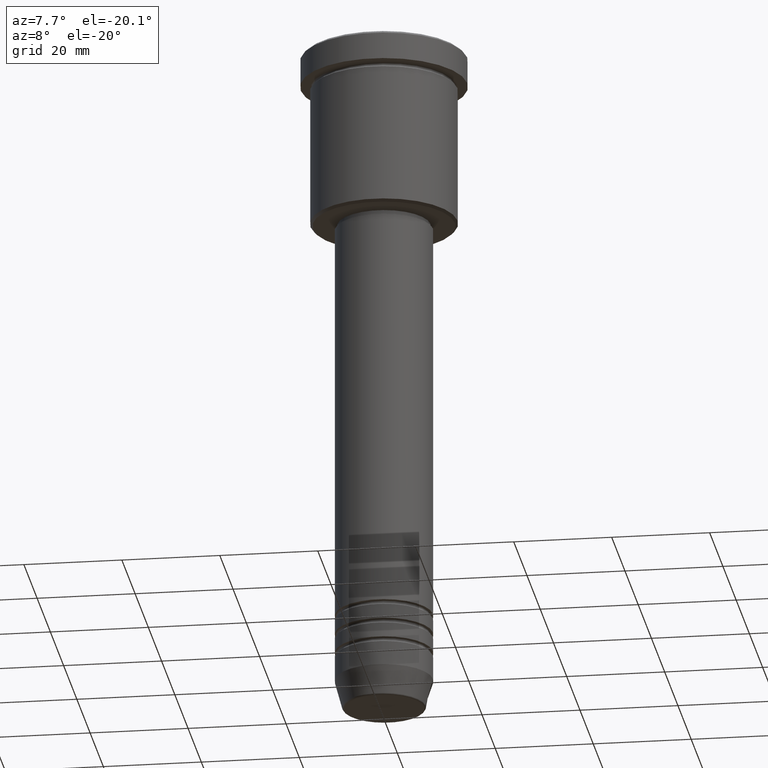
[diagram: clean part render]
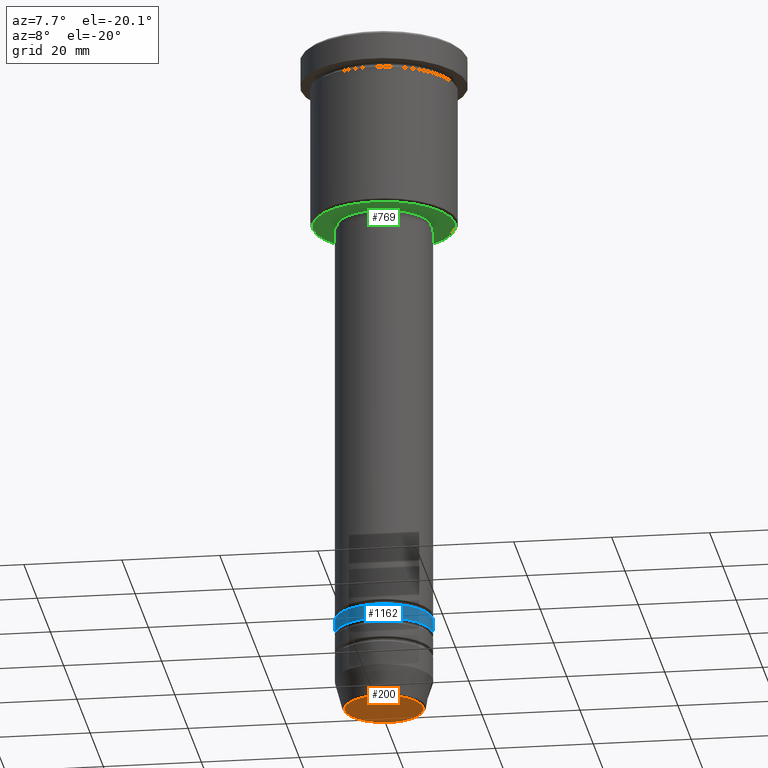
[diagram: same view with three faces highlighted in distinct colors, each labeled with its STEP entity id]
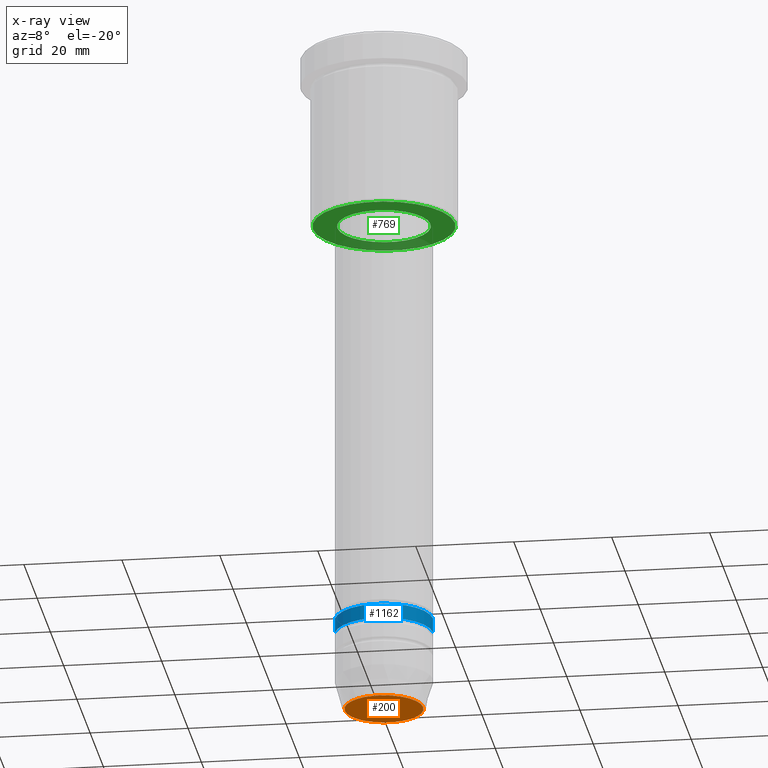
[diagram: x-ray of the same camera — body ghosted, the three highlighted faces saturated]
A machine part, auxiliary view with three faces highlighted in distinct colors.
The next image is the same camera in x-ray (body ghosted, the three faces saturated) — at least one of them is partly hidden behind the body in this view.
Their STEP definitions:

[orange] entity #200 — the highlighted planar face has unit normal (0, -0, 1).
#14 = DIRECTION ( 'NONE',  ( 0.000000000000000000, 0.000000000000000000, -1.000000000000000000 ) ) ;
#17 = DIRECTION ( 'NONE',  ( 0.000000000000000000, -0.000000000000000000, 1.000000000000000000 ) ) ;
#62 = CIRCLE ( 'NONE', #102, 8.008641351423783306 ) ;
#91 = FACE_OUTER_BOUND ( 'NONE', #639, .T. ) ;
#102 = AXIS2_PLACEMENT_3D ( 'NONE', #368, #730, #466 ) ;
#200 = ADVANCED_FACE ( 'NONE', ( #91 ), #322, .F. ) ;
#218 = ORIENTED_EDGE ( 'NONE', *, *, #254, .T. ) ;
#237 = DIRECTION ( 'NONE',  ( 1.000000000000000000, 0.000000000000000000, 0.000000000000000000 ) ) ;
#254 = EDGE_CURVE ( 'NONE', #815, #930, #62, .T. ) ;
#303 = CIRCLE ( 'NONE', #1062, 8.008641351423783306 ) ;
#322 = PLANE ( 'NONE',  #805 ) ;
#367 = EDGE_CURVE ( 'NONE', #930, #815, #303, .T. ) ;
#368 = CARTESIAN_POINT ( 'NONE',  ( 0.000000000000000000, 0.000000000000000000, -140.0000000000000000 ) ) ;
#384 = ORIENTED_EDGE ( 'NONE', *, *, #367, .T. ) ;
#391 = CARTESIAN_POINT ( 'NONE',  ( 8.008641351423783306, 0.000000000000000000, -140.0000000000000000 ) ) ;
#466 = DIRECTION ( 'NONE',  ( 1.000000000000000000, 0.000000000000000000, 0.000000000000000000 ) ) ;
#566 = CARTESIAN_POINT ( 'NONE',  ( -8.008641351423783306, 1.010348648938493566E-15, -140.0000000000000000 ) ) ;
#593 = CARTESIAN_POINT ( 'NONE',  ( 0.000000000000000000, 0.000000000000000000, -140.0000000000000000 ) ) ;
#639 = EDGE_LOOP ( 'NONE', ( #218, #384 ) ) ;
#663 = DIRECTION ( 'NONE',  ( 1.000000000000000000, 0.000000000000000000, 0.000000000000000000 ) ) ;
#730 = DIRECTION ( 'NONE',  ( 0.000000000000000000, 0.000000000000000000, -1.000000000000000000 ) ) ;
#805 = AXIS2_PLACEMENT_3D ( 'NONE', #593, #17, #663 ) ;
#815 = VERTEX_POINT ( 'NONE', #391 ) ;
#837 = CARTESIAN_POINT ( 'NONE',  ( 0.000000000000000000, 0.000000000000000000, -140.0000000000000000 ) ) ;
#930 = VERTEX_POINT ( 'NONE', #566 ) ;
#1062 = AXIS2_PLACEMENT_3D ( 'NONE', #837, #14, #237 ) ;

[blue] entity #1162 — the highlighted cylindrical surface (partial cylindrical patch) has radius 10 mm, axis along (-0, -0, 1).
#22 = EDGE_LOOP ( 'NONE', ( #607, #1127, #716, #979 ) ) ;
#128 = LINE ( 'NONE', #950, #888 ) ;
#168 = DIRECTION ( 'NONE',  ( -0.000000000000000000, -0.000000000000000000, 1.000000000000000000 ) ) ;
#196 = CARTESIAN_POINT ( 'NONE',  ( 0.000000000000000000, 0.000000000000000000, -121.0000000000000000 ) ) ;
#297 = CARTESIAN_POINT ( 'NONE',  ( 0.000000000000000000, 0.000000000000000000, -124.0000000000000000 ) ) ;
#340 = CARTESIAN_POINT ( 'NONE',  ( -10.00000000000000178, 1.224646799147353454E-15, -124.0000000000000000 ) ) ;
#352 = EDGE_CURVE ( 'NONE', #987, #469, #524, .T. ) ;
#364 = AXIS2_PLACEMENT_3D ( 'NONE', #396, #1116, #674 ) ;
#394 = VERTEX_POINT ( 'NONE', #879 ) ;
#396 = CARTESIAN_POINT ( 'NONE',  ( 0.000000000000000000, 0.000000000000000000, 0.000000000000000000 ) ) ;
#421 = AXIS2_PLACEMENT_3D ( 'NONE', #297, #460, #811 ) ;
#460 = DIRECTION ( 'NONE',  ( -0.000000000000000000, -0.000000000000000000, 1.000000000000000000 ) ) ;
#469 = VERTEX_POINT ( 'NONE', #878 ) ;
#489 = CARTESIAN_POINT ( 'NONE',  ( 10.00000000000000178, 0.000000000000000000, -124.0000000000000000 ) ) ;
#500 = CIRCLE ( 'NONE', #421, 10.00000000000000178 ) ;
#508 = DIRECTION ( 'NONE',  ( -0.000000000000000000, -0.000000000000000000, 1.000000000000000000 ) ) ;
#524 = LINE ( 'NONE', #655, #807 ) ;
#597 = EDGE_CURVE ( 'NONE', #987, #928, #500, .T. ) ;
#607 = ORIENTED_EDGE ( 'NONE', *, *, #352, .F. ) ;
#655 = CARTESIAN_POINT ( 'NONE',  ( -10.00000000000000178, 1.224646799147353454E-15, 0.000000000000000000 ) ) ;
#672 = FACE_OUTER_BOUND ( 'NONE', #22, .T. ) ;
#674 = DIRECTION ( 'NONE',  ( 1.000000000000000000, 0.000000000000000000, 0.000000000000000000 ) ) ;
#688 = DIRECTION ( 'NONE',  ( 1.000000000000000000, 0.000000000000000000, 0.000000000000000000 ) ) ;
#716 = ORIENTED_EDGE ( 'NONE', *, *, #883, .T. ) ;
#807 = VECTOR ( 'NONE', #957, 1000.000000000000000 ) ;
#811 = DIRECTION ( 'NONE',  ( 1.000000000000000000, 0.000000000000000000, 0.000000000000000000 ) ) ;
#878 = CARTESIAN_POINT ( 'NONE',  ( -10.00000000000000000, 1.224646799147353256E-15, -121.0000000000000000 ) ) ;
#879 = CARTESIAN_POINT ( 'NONE',  ( 10.00000000000000000, 0.000000000000000000, -121.0000000000000000 ) ) ;
#883 = EDGE_CURVE ( 'NONE', #928, #394, #128, .T. ) ;
#888 = VECTOR ( 'NONE', #508, 1000.000000000000000 ) ;
#909 = EDGE_CURVE ( 'NONE', #469, #394, #1172, .T. ) ;
#928 = VERTEX_POINT ( 'NONE', #489 ) ;
#950 = CARTESIAN_POINT ( 'NONE',  ( 10.00000000000000178, 0.000000000000000000, 0.000000000000000000 ) ) ;
#955 = AXIS2_PLACEMENT_3D ( 'NONE', #196, #168, #688 ) ;
#957 = DIRECTION ( 'NONE',  ( -0.000000000000000000, -0.000000000000000000, 1.000000000000000000 ) ) ;
#979 = ORIENTED_EDGE ( 'NONE', *, *, #909, .F. ) ;
#987 = VERTEX_POINT ( 'NONE', #340 ) ;
#1033 = CYLINDRICAL_SURFACE ( 'NONE', #364, 10.00000000000000178 ) ;
#1116 = DIRECTION ( 'NONE',  ( -0.000000000000000000, -0.000000000000000000, 1.000000000000000000 ) ) ;
#1127 = ORIENTED_EDGE ( 'NONE', *, *, #597, .T. ) ;
#1162 = ADVANCED_FACE ( 'NONE', ( #672 ), #1033, .T. ) ;
#1172 = CIRCLE ( 'NONE', #955, 10.00000000000000000 ) ;

[green] entity #769 — the highlighted planar face has unit normal (0, 0, -1).
#2 = VERTEX_POINT ( 'NONE', #1153 ) ;
#24 = CIRCLE ( 'NONE', #589, 14.49999999999995559 ) ;
#64 = DIRECTION ( 'NONE',  ( 1.000000000000000000, 0.000000000000000000, 0.000000000000000000 ) ) ;
#89 = CARTESIAN_POINT ( 'NONE',  ( 0.000000000000000000, 0.000000000000000000, -36.00000000000001421 ) ) ;
#173 = EDGE_LOOP ( 'NONE', ( #338, #789 ) ) ;
#184 = PLANE ( 'NONE',  #1065 ) ;
#198 = VERTEX_POINT ( 'NONE', #999 ) ;
#235 = EDGE_CURVE ( 'NONE', #772, #2, #499, .T. ) ;
#242 = CARTESIAN_POINT ( 'NONE',  ( 0.000000000000000000, 0.000000000000000000, -36.00000000000000711 ) ) ;
#274 = DIRECTION ( 'NONE',  ( 1.000000000000000000, 0.000000000000000000, 0.000000000000000000 ) ) ;
#299 = ORIENTED_EDGE ( 'NONE', *, *, #387, .T. ) ;
#308 = EDGE_LOOP ( 'NONE', ( #620, #299 ) ) ;
#338 = ORIENTED_EDGE ( 'NONE', *, *, #530, .T. ) ;
#344 = DIRECTION ( 'NONE',  ( 0.000000000000000000, 0.000000000000000000, -1.000000000000000000 ) ) ;
#357 = AXIS2_PLACEMENT_3D ( 'NONE', #89, #358, #274 ) ;
#358 = DIRECTION ( 'NONE',  ( -0.000000000000000000, -0.000000000000000000, 1.000000000000000000 ) ) ;
#387 = EDGE_CURVE ( 'NONE', #2, #772, #552, .T. ) ;
#427 = CARTESIAN_POINT ( 'NONE',  ( 0.000000000000000000, 0.000000000000000000, -36.00000000000001421 ) ) ;
#459 = CIRCLE ( 'NONE', #1020, 14.49999999999995559 ) ;
#499 = CIRCLE ( 'NONE', #357, 9.500000000000001776 ) ;
#526 = CARTESIAN_POINT ( 'NONE',  ( 0.000000000000000000, 0.000000000000000000, -36.00000000000000711 ) ) ;
#530 = EDGE_CURVE ( 'NONE', #564, #198, #24, .T. ) ;
#538 = AXIS2_PLACEMENT_3D ( 'NONE', #427, #1041, #64 ) ;
#552 = CIRCLE ( 'NONE', #538, 9.500000000000001776 ) ;
#564 = VERTEX_POINT ( 'NONE', #1167 ) ;
#575 = EDGE_CURVE ( 'NONE', #198, #564, #459, .T. ) ;
#589 = AXIS2_PLACEMENT_3D ( 'NONE', #242, #617, #826 ) ;
#617 = DIRECTION ( 'NONE',  ( 0.000000000000000000, 0.000000000000000000, -1.000000000000000000 ) ) ;
#620 = ORIENTED_EDGE ( 'NONE', *, *, #235, .T. ) ;
#635 = FACE_OUTER_BOUND ( 'NONE', #173, .T. ) ;
#648 = FACE_BOUND ( 'NONE', #308, .T. ) ;
#713 = DIRECTION ( 'NONE',  ( -1.000000000000000000, 0.000000000000000000, 0.000000000000000000 ) ) ;
#769 = ADVANCED_FACE ( 'NONE', ( #635, #648 ), #184, .T. ) ;
#772 = VERTEX_POINT ( 'NONE', #1179 ) ;
#789 = ORIENTED_EDGE ( 'NONE', *, *, #575, .T. ) ;
#818 = DIRECTION ( 'NONE',  ( -1.000000000000000000, 0.000000000000000000, -0.000000000000000000 ) ) ;
#822 = CARTESIAN_POINT ( 'NONE',  ( 0.000000000000000000, 15.00000000000000000, -36.00000000000000711 ) ) ;
#826 = DIRECTION ( 'NONE',  ( -1.000000000000000000, 0.000000000000000000, 0.000000000000000000 ) ) ;
#915 = DIRECTION ( 'NONE',  ( 0.000000000000000000, 0.000000000000000000, -1.000000000000000000 ) ) ;
#999 = CARTESIAN_POINT ( 'NONE',  ( -14.49999999999995559, 1.806354028742343041E-15, -36.00000000000000711 ) ) ;
#1020 = AXIS2_PLACEMENT_3D ( 'NONE', #526, #344, #713 ) ;
#1041 = DIRECTION ( 'NONE',  ( -0.000000000000000000, -0.000000000000000000, 1.000000000000000000 ) ) ;
#1065 = AXIS2_PLACEMENT_3D ( 'NONE', #822, #915, #818 ) ;
#1153 = CARTESIAN_POINT ( 'NONE',  ( -9.500000000000001776, 1.163414459189985682E-15, -36.00000000000001421 ) ) ;
#1167 = CARTESIAN_POINT ( 'NONE',  ( 14.49999999999995559, 0.000000000000000000, -36.00000000000000711 ) ) ;
#1179 = CARTESIAN_POINT ( 'NONE',  ( 9.500000000000001776, 0.000000000000000000, -36.00000000000001421 ) ) ;